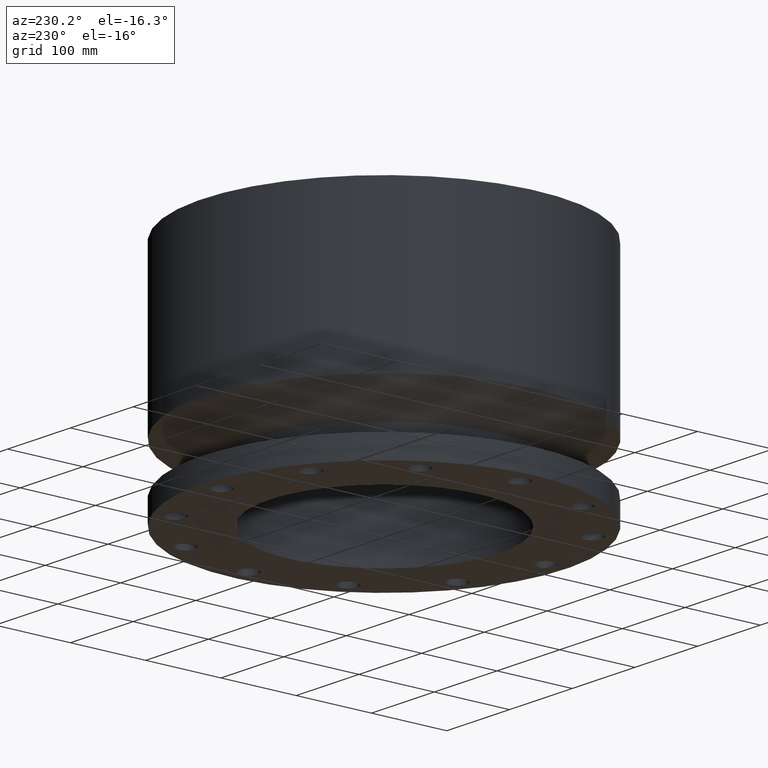
[diagram: clean part render]
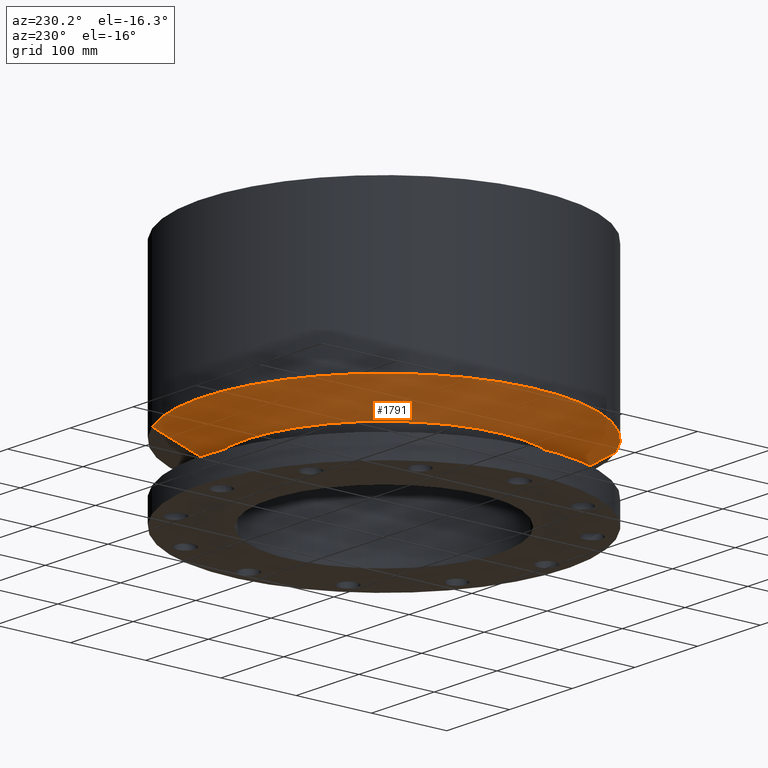
[diagram: same view with one face highlighted and labeled with its STEP entity id]
A machine part, auxiliary view. The second image highlights one B-rep face of the part: STEP entity #1791.
In plain terms, the highlighted conical surface has half-angle 60 deg.
Its self-contained STEP definition (entity closure, byte-faithful):
#1226=AXIS2_PLACEMENT_3D('Circle Axis2P3D',#1224,#1225,$) ;
#1752=AXIS2_PLACEMENT_3D('Cone Axis2P3D',#1749,#1750,#1751) ;
#1782=AXIS2_PLACEMENT_3D('Circle Axis2P3D',#1780,#1781,$) ;
#1202=CARTESIAN_POINT('Vertex',(3.44706962258,6.30981862002,2.30750000001)) ;
#1209=CARTESIAN_POINT('Vertex',(-3.44706962258,-6.30981862002,2.30750000001)) ;
#1224=CARTESIAN_POINT('Axis2P3D Location',(0.,0.,2.30750000001)) ;
#1749=CARTESIAN_POINT('Axis2P3D Location',(0.,0.,2.30750000001)) ;
#1754=CARTESIAN_POINT('Line Origine',(4.00080611967,7.323426479,2.97433956093)) ;
#1758=CARTESIAN_POINT('Vertex',(4.55454261676,8.33703433799,3.64117912184)) ;
#1765=CARTESIAN_POINT('Vertex',(-4.55454261676,-8.33703433799,3.64117912184)) ;
#1768=CARTESIAN_POINT('Line Origine',(-4.00080611967,-7.323426479,2.97433956093)) ;
#1780=CARTESIAN_POINT('Axis2P3D Location',(0.,0.,3.64117912184)) ;
#1225=DIRECTION('Axis2P3D Direction',(0.,0.,-0.0393700787402)) ;
#1750=DIRECTION('Axis2P3D Direction',(-0.,-0.,0.0393700787402)) ;
#1751=DIRECTION('Axis2P3D XDirection',(0.0188750212049,0.0345504945626,0.)) ;
#1755=DIRECTION('Vector Direction',(0.0163462478604,0.0299216060045,0.0196850393701)) ;
#1769=DIRECTION('Vector Direction',(-0.0163462478604,-0.0299216060045,0.0196850393701)) ;
#1781=DIRECTION('Axis2P3D Direction',(-0.,0.,0.0393700787402)) ;
#1756=VECTOR('Line Direction',#1755,0.0393700787402) ;
#1770=VECTOR('Line Direction',#1769,0.0393700787402) ;
#1786=ORIENTED_EDGE('',*,*,#1228,.F.) ;
#1787=ORIENTED_EDGE('',*,*,#1772,.T.) ;
#1788=ORIENTED_EDGE('',*,*,#1784,.T.) ;
#1789=ORIENTED_EDGE('',*,*,#1760,.F.) ;
#1791=ADVANCED_FACE('PartBody',(#1790),#1753,.T.) ;
#1227=CIRCLE('generated circle',#1226,7.19000000003) ;
#1783=CIRCLE('generated circle',#1782,9.50000000004) ;
#1753=CONICAL_SURFACE('Cone',#1752,7.19000000003,1.0471975512) ;
#1228=EDGE_CURVE('',#1210,#1203,#1227,.T.) ;
#1760=EDGE_CURVE('',#1203,#1759,#1757,.T.) ;
#1772=EDGE_CURVE('',#1210,#1766,#1771,.T.) ;
#1784=EDGE_CURVE('',#1766,#1759,#1783,.F.) ;
#1785=EDGE_LOOP('',(#1786,#1787,#1788,#1789)) ;
#1790=FACE_OUTER_BOUND('',#1785,.T.) ;
#1757=LINE('Line',#1754,#1756) ;
#1771=LINE('Line',#1768,#1770) ;
#1203=VERTEX_POINT('',#1202) ;
#1210=VERTEX_POINT('',#1209) ;
#1759=VERTEX_POINT('',#1758) ;
#1766=VERTEX_POINT('',#1765) ;